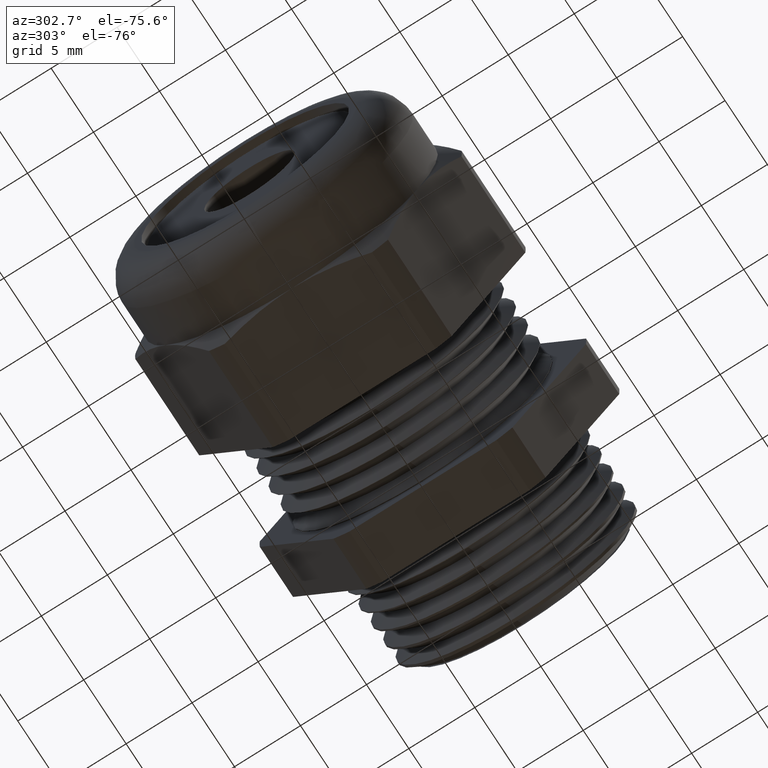
[diagram: clean part render]
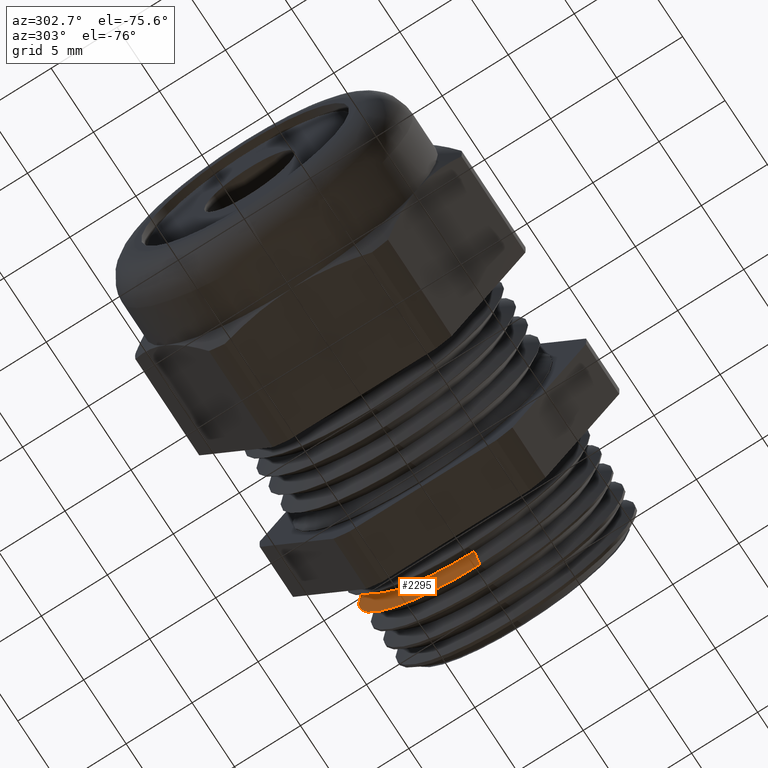
[diagram: same view with one face highlighted and labeled with its STEP entity id]
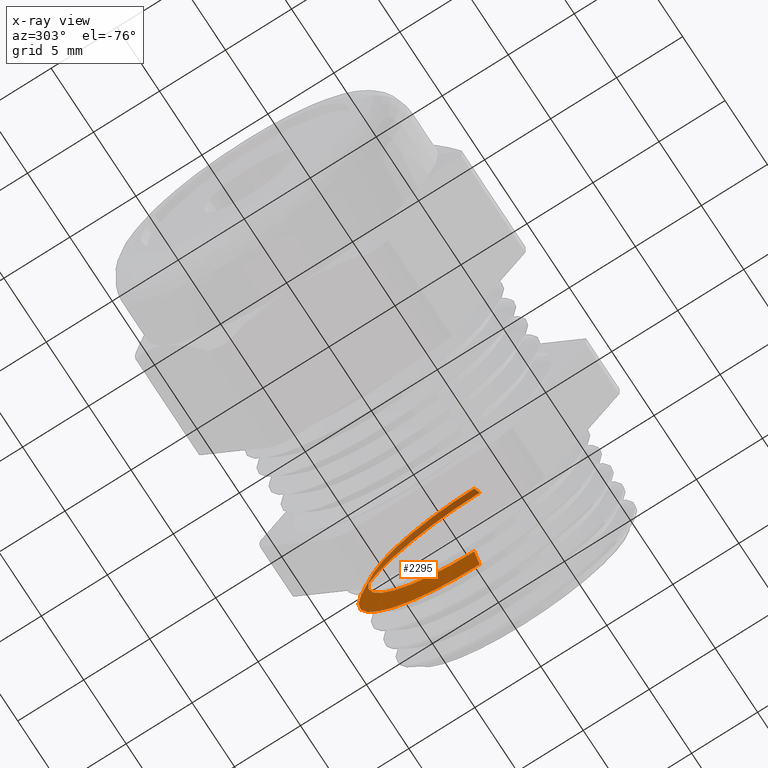
[diagram: x-ray of the same camera — body ghosted, the highlighted face saturated]
A machine part, auxiliary view. The second image highlights one B-rep face of the part: STEP entity #2295.
The next image is the same camera in x-ray: the body ghosted, the highlighted face saturated — about 29% of this face is hidden behind the body in this view.
In plain terms, the highlighted conical surface has half-angle 60 deg.
Its self-contained STEP definition (entity closure, byte-faithful):
#1406 = CARTESIAN_POINT ( 'NONE',  ( 0.1101973823376645700, 0.0000000000000000000, 0.3621143799889762200 ) ) ;
#1407 = DIRECTION ( 'NONE',  ( 0.5000000000000010000, 1.060575238724906100E-016, 0.8660254037844379300 ) ) ;
#1408 = VECTOR ( 'NONE', #1407, 39.37007874015748900 ) ;
#1409 = CARTESIAN_POINT ( 'NONE',  ( 0.08393169791390366100, 3.877487473227224100E-017, 0.3166208800714525600 ) ) ;
#1410 = LINE ( 'NONE', #1409, #1408 ) ;
#1411 = CARTESIAN_POINT ( 'NONE',  ( 0.08393169791390366100, 4.164607128499804300E-017, -0.3166208800714525600 ) ) ;
#1414 = CARTESIAN_POINT ( 'NONE',  ( 0.08393169791390366100, 0.0000000000000000000, 0.3166208800714525600 ) ) ;
#1415 = DIRECTION ( 'NONE',  ( 0.0000000000000000000, 0.0000000000000000000, 1.000000000000000000 ) ) ;
#1416 = DIRECTION ( 'NONE',  ( -1.000000000000000000, 0.0000000000000000000, 0.0000000000000000000 ) ) ;
#1417 = CARTESIAN_POINT ( 'NONE',  ( 0.08393169791390366100, 0.0000000000000000000, 0.0000000000000000000 ) ) ;
#1418 = AXIS2_PLACEMENT_3D ( 'NONE', #1417, #1416, #1415 ) ;
#1419 = CIRCLE ( 'NONE', #1418, 0.3166208800714525600 ) ;
#1502 = DIRECTION ( 'NONE',  ( 0.5000000000000010000, 0.0000000000000000000, -0.8660254037844379300 ) ) ;
#1503 = VECTOR ( 'NONE', #1502, 39.37007874015748900 ) ;
#1504 = CARTESIAN_POINT ( 'NONE',  ( 0.08393169791390366100, 0.0000000000000000000, -0.3166208800714525600 ) ) ;
#1505 = LINE ( 'NONE', #1504, #1503 ) ;
#1506 = CARTESIAN_POINT ( 'NONE',  ( 0.1101973823376645700, 4.434622163787281000E-017, -0.3621143799889762200 ) ) ;
#1507 = DIRECTION ( 'NONE',  ( 0.0000000000000000000, 0.0000000000000000000, -1.000000000000000000 ) ) ;
#1508 = DIRECTION ( 'NONE',  ( -1.000000000000000000, 0.0000000000000000000, 0.0000000000000000000 ) ) ;
#1509 = AXIS2_PLACEMENT_3D ( 'NONE', #1517, #1508, #1507 ) ;
#1510 = CIRCLE ( 'NONE', #1509, 0.3621143799889761600 ) ;
#1512 = DIRECTION ( 'NONE',  ( 0.0000000000000000000, 0.0000000000000000000, -1.000000000000000000 ) ) ;
#1513 = DIRECTION ( 'NONE',  ( 1.000000000000000000, 0.0000000000000000000, 0.0000000000000000000 ) ) ;
#1514 = CARTESIAN_POINT ( 'NONE',  ( 0.08393169791390366100, 0.0000000000000000000, 0.0000000000000000000 ) ) ;
#1516 = AXIS2_PLACEMENT_3D ( 'NONE', #1514, #1513, #1512 ) ;
#1517 = CARTESIAN_POINT ( 'NONE',  ( 0.1101973823376645700, 0.0000000000000000000, 0.0000000000000000000 ) ) ;
#1518 = CONICAL_SURFACE ( 'NONE', #1516, 0.3166208800714525600, 1.047197551196596500 ) ;
#1519 = FACE_OUTER_BOUND ( 'NONE', #2296, .T. ) ;
#2251 = ORIENTED_EDGE ( 'NONE', *, *, #2252, .F. ) ;
#2252 = EDGE_CURVE ( 'NONE', #2253, #2254, #1419, .T. ) ;
#2253 = VERTEX_POINT ( 'NONE', #1414 ) ;
#2254 = VERTEX_POINT ( 'NONE', #1411 ) ;
#2255 = ORIENTED_EDGE ( 'NONE', *, *, #2256, .T. ) ;
#2256 = EDGE_CURVE ( 'NONE', #2253, #2257, #1410, .T. ) ;
#2257 = VERTEX_POINT ( 'NONE', #1406 ) ;
#2295 = ADVANCED_FACE ( 'NONE', ( #1519 ), #1518, .T. ) ;
#2296 = EDGE_LOOP ( 'NONE', ( #2251, #2255, #2298, #2301 ) ) ;
#2298 = ORIENTED_EDGE ( 'NONE', *, *, #2299, .T. ) ;
#2299 = EDGE_CURVE ( 'NONE', #2257, #2300, #1510, .T. ) ;
#2300 = VERTEX_POINT ( 'NONE', #1506 ) ;
#2301 = ORIENTED_EDGE ( 'NONE', *, *, #2302, .F. ) ;
#2302 = EDGE_CURVE ( 'NONE', #2254, #2300, #1505, .T. ) ;